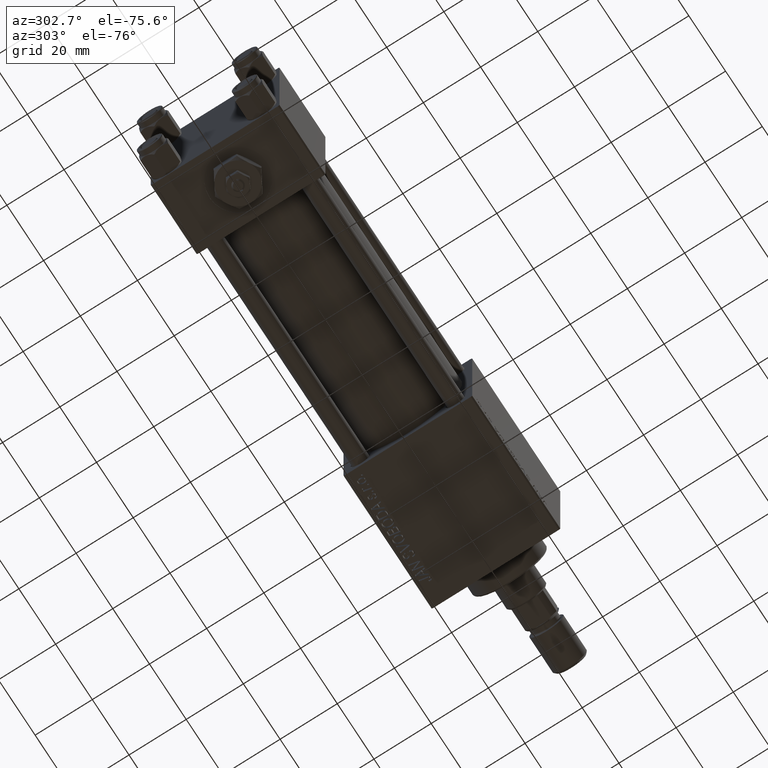
[diagram: clean part render]
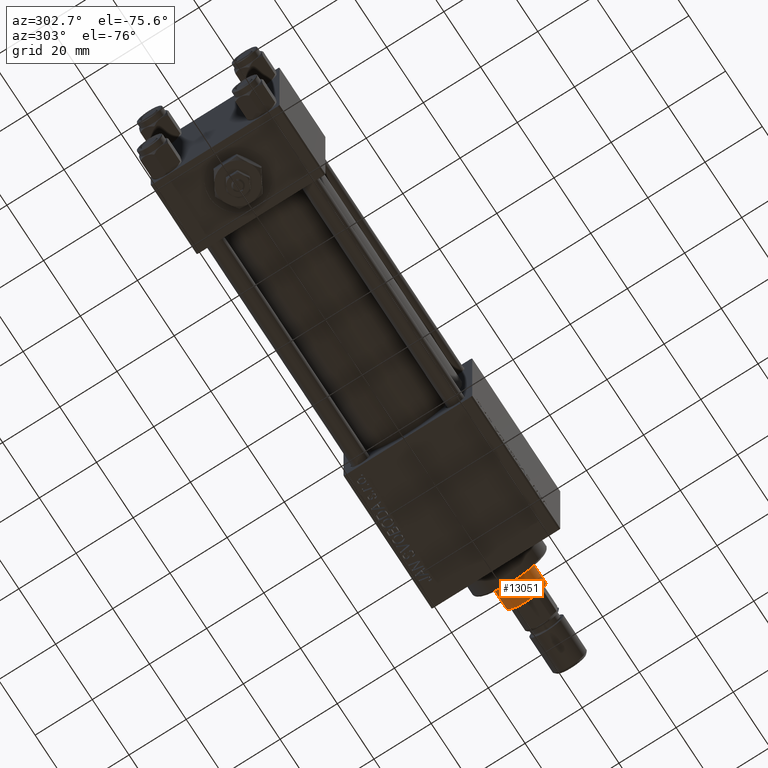
[diagram: same view with one face highlighted and labeled with its STEP entity id]
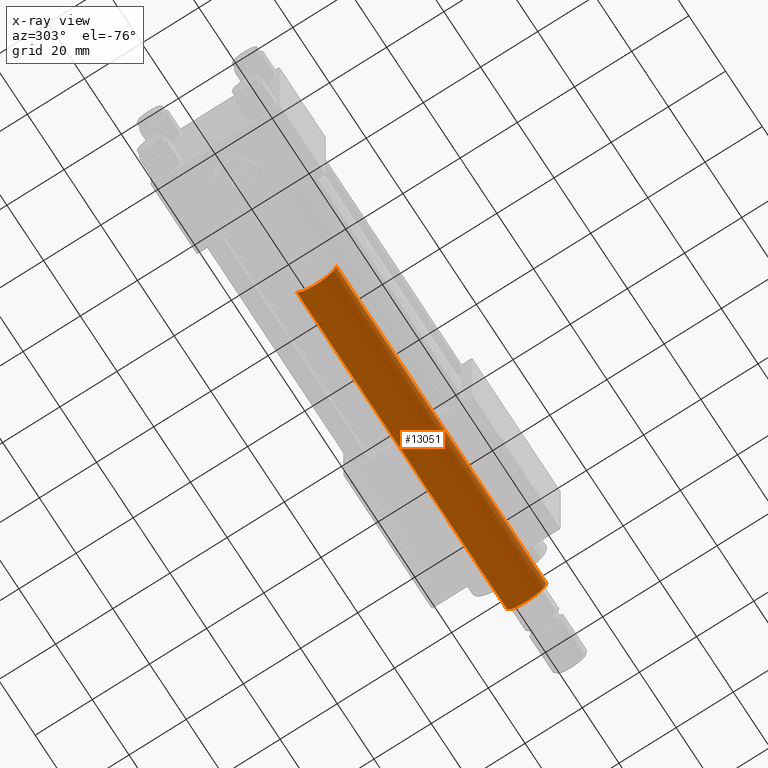
[diagram: x-ray of the same camera — body ghosted, the highlighted face saturated]
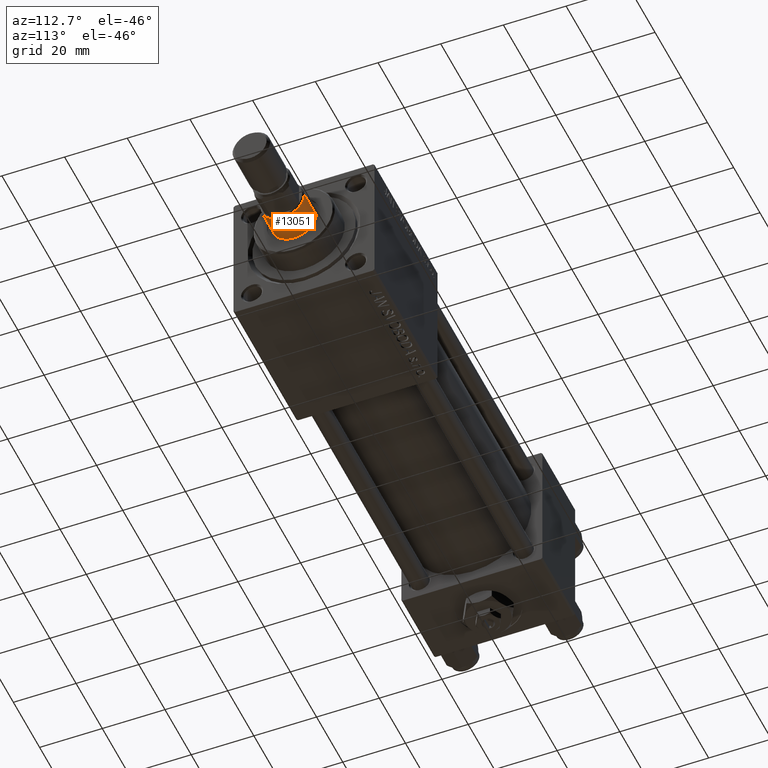
[diagram: same view with one face highlighted and labeled with its STEP entity id]
A machine part, auxiliary view. The second image highlights one B-rep face of the part: STEP entity #13051.
The next image is the same camera in x-ray: the body ghosted, the highlighted face saturated — about 0% of this face is hidden behind the body in this view.
A second angle (auxiliary view) of the same face is appended — the face is thin or edge-on in the first view.
In plain terms, the highlighted cylindrical surface (edge-blend (fillet) strip) has radius 7 mm, axis along (-1, 0, 0).
Its self-contained STEP definition (entity closure, byte-faithful):
#1518 = DIRECTION ( 'NONE',  ( -0.000000000000000000, -0.000000000000000000, -1.000000000000000000 ) ) ;
#1621 = EDGE_CURVE ( 'NONE', #13146, #45887, #23079, .T. ) ;
#3863 = LINE ( 'NONE', #12058, #38912 ) ;
#6267 = CYLINDRICAL_SURFACE ( 'NONE', #24161, 7.000000000000000000 ) ;
#7224 = CARTESIAN_POINT ( 'NONE',  ( 0.000000000000000000, 0.000000000000000000, 144.4999999999999716 ) ) ;
#11195 = EDGE_CURVE ( 'NONE', #41085, #45887, #50935, .T. ) ;
#11956 = DIRECTION ( 'NONE',  ( 1.000000000000000000, 0.000000000000000000, 0.000000000000000000 ) ) ;
#12058 = CARTESIAN_POINT ( 'NONE',  ( 7.000000000000000000, 8.572527594031473190E-16, 145.0000000000000284 ) ) ;
#12084 = CARTESIAN_POINT ( 'NONE',  ( 7.000000000000000000, 8.572527594031473190E-16, 30.00000000000000000 ) ) ;
#13051 = ADVANCED_FACE ( 'NONE', ( #30388 ), #6267, .T. ) ;
#13146 = VERTEX_POINT ( 'NONE', #12084 ) ;
#14037 = ORIENTED_EDGE ( 'NONE', *, *, #1621, .T. ) ;
#18017 = VERTEX_POINT ( 'NONE', #45756 ) ;
#18972 = CARTESIAN_POINT ( 'NONE',  ( 0.000000000000000000, 0.000000000000000000, 145.0000000000000284 ) ) ;
#20843 = ORIENTED_EDGE ( 'NONE', *, *, #47787, .T. ) ;
#22866 = DIRECTION ( 'NONE',  ( 0.000000000000000000, 0.000000000000000000, -1.000000000000000000 ) ) ;
#23079 = CIRCLE ( 'NONE', #29851, 7.000000000000000000 ) ;
#23306 = VECTOR ( 'NONE', #1518, 1000.000000000000000 ) ;
#24161 = AXIS2_PLACEMENT_3D ( 'NONE', #18972, #46526, #42820 ) ;
#26016 = CARTESIAN_POINT ( 'NONE',  ( -7.000000000000000000, 0.000000000000000000, 30.00000000000000000 ) ) ;
#26252 = CIRCLE ( 'NONE', #32205, 7.000000000000000000 ) ;
#27764 = ORIENTED_EDGE ( 'NONE', *, *, #48028, .T. ) ;
#29851 = AXIS2_PLACEMENT_3D ( 'NONE', #31315, #31575, #11956 ) ;
#30104 = ORIENTED_EDGE ( 'NONE', *, *, #11195, .F. ) ;
#30388 = FACE_OUTER_BOUND ( 'NONE', #32980, .T. ) ;
#31095 = CARTESIAN_POINT ( 'NONE',  ( -7.000000000000000000, 0.000000000000000000, 145.0000000000000284 ) ) ;
#31315 = CARTESIAN_POINT ( 'NONE',  ( 0.000000000000000000, 0.000000000000000000, 30.00000000000000000 ) ) ;
#31575 = DIRECTION ( 'NONE',  ( 0.000000000000000000, 0.000000000000000000, 1.000000000000000000 ) ) ;
#32205 = AXIS2_PLACEMENT_3D ( 'NONE', #7224, #22866, #39017 ) ;
#32980 = EDGE_LOOP ( 'NONE', ( #27764, #20843, #14037, #30104 ) ) ;
#38912 = VECTOR ( 'NONE', #44894, 1000.000000000000000 ) ;
#39017 = DIRECTION ( 'NONE',  ( 1.000000000000000000, 0.000000000000000000, 0.000000000000000000 ) ) ;
#41085 = VERTEX_POINT ( 'NONE', #50977 ) ;
#42820 = DIRECTION ( 'NONE',  ( -1.000000000000000000, 0.000000000000000000, 0.000000000000000000 ) ) ;
#44894 = DIRECTION ( 'NONE',  ( -0.000000000000000000, -0.000000000000000000, -1.000000000000000000 ) ) ;
#45756 = CARTESIAN_POINT ( 'NONE',  ( 7.000000000000000000, 8.572527594031473190E-16, 144.4999999999999716 ) ) ;
#45887 = VERTEX_POINT ( 'NONE', #26016 ) ;
#46526 = DIRECTION ( 'NONE',  ( -0.000000000000000000, -0.000000000000000000, -1.000000000000000000 ) ) ;
#47787 = EDGE_CURVE ( 'NONE', #18017, #13146, #3863, .T. ) ;
#48028 = EDGE_CURVE ( 'NONE', #41085, #18017, #26252, .T. ) ;
#50935 = LINE ( 'NONE', #31095, #23306 ) ;
#50977 = CARTESIAN_POINT ( 'NONE',  ( -7.000000000000000000, 0.000000000000000000, 144.4999999999999716 ) ) ;